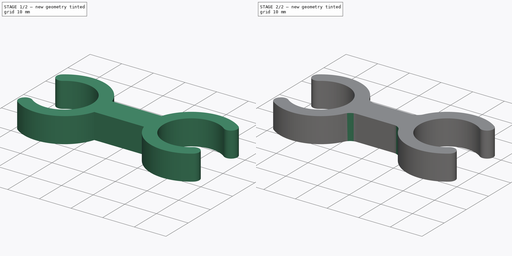
[diagram: build sequence overview — one tinted view per stage of 2, left to right]
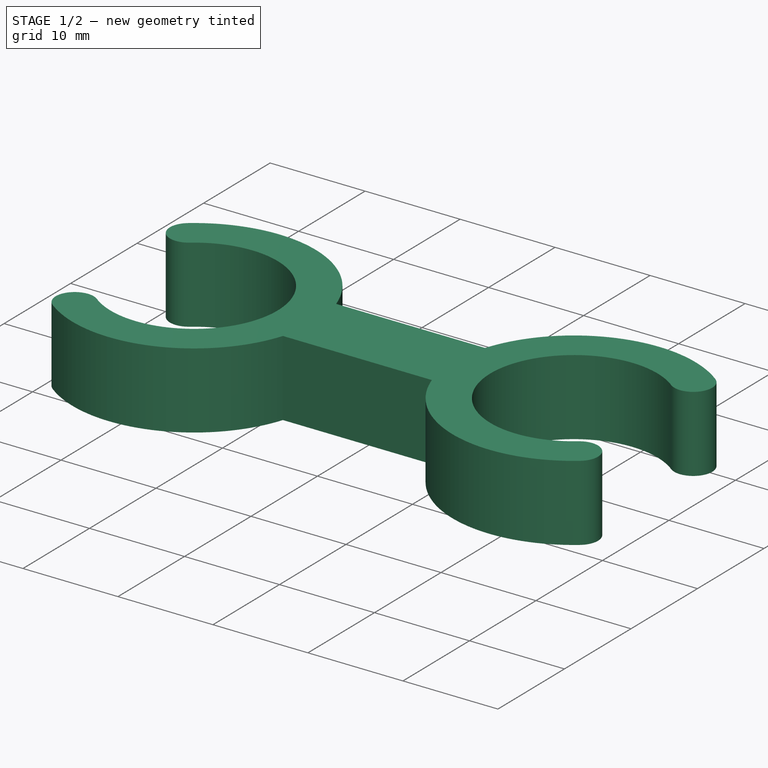
[diagram: stage 1 of 2 — iso view after this stage's code; geometry added in this stage tinted green]
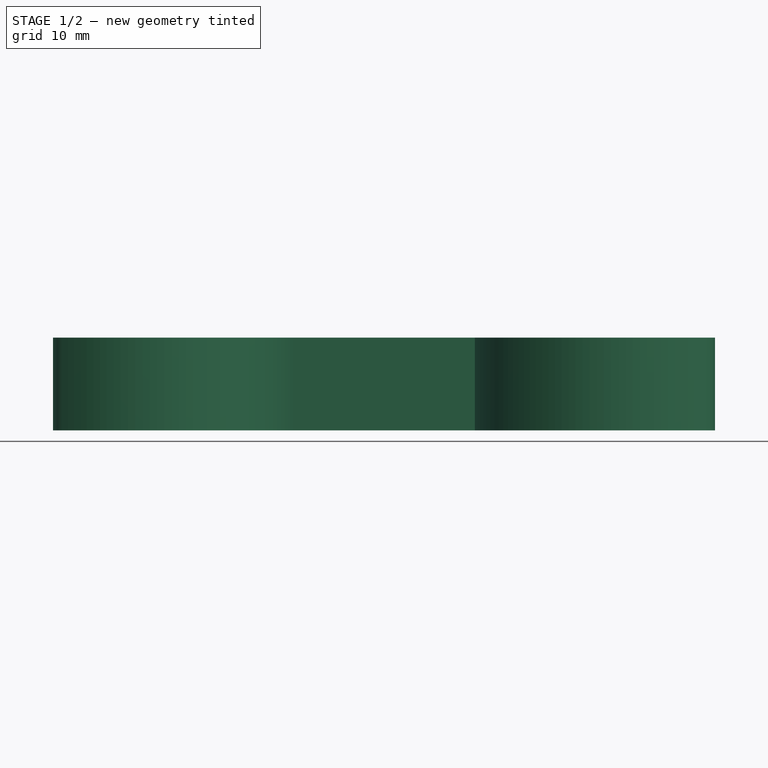
[diagram: stage 1 of 2 — front view after this stage's code; geometry added in this stage tinted green]
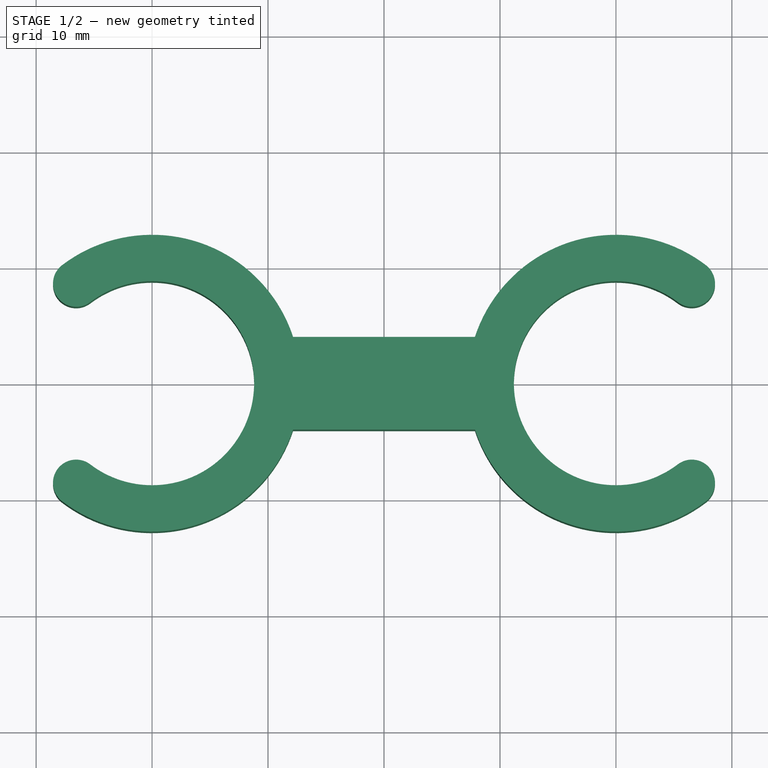
[diagram: stage 1 of 2 — top view after this stage's code; geometry added in this stage tinted green]
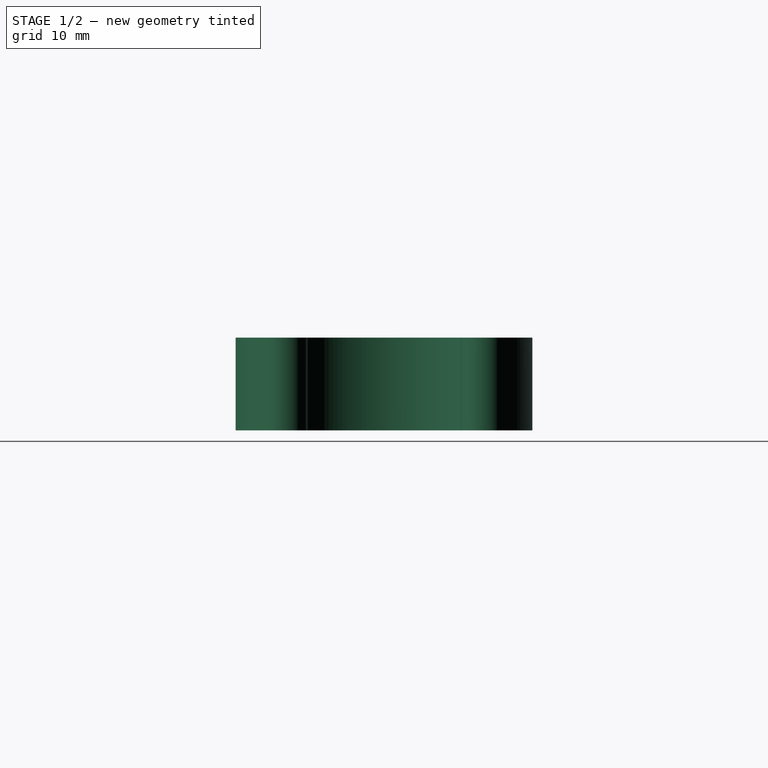
[diagram: stage 1 of 2 — right view after this stage's code; geometry added in this stage tinted green]
FCSTD DOCUMENT  (FreeCAD 0.18R16131 (Git))
Label: Connector
License: CreativeCommons Attribution-NonCommercial-NoDerivatives
LicenseURL: http://creativecommons.org/licenses/by-nc-nd/4.0/
objects: Sketcher::SketchObject×1, PartDesign::Pad×1, PartDesign::Fillet×1, PartDesign::Body×1
note: 5 computed .brp shape members not serialized (recipe doc carries the construction recipe); baked Part::Feature solids carry a one-line shape summary decoded from their .brp

FEATURE [Sketcher::SketchObject] Sketch
  MapMode = 5
  Support = -> [XY_Plane]
  sketch-geometry (15):
    g0: ArcOfCircle CenterX=-20 CenterY=0 CenterZ=0 NormalX=0 NormalY=0 NormalZ=1 AngleXU=0 Radius=8.8 StartAngle=4.06135 EndAngle=8.50502
    g1: LineSegment [constr] StartX=-25.3329 StartY=7 StartZ=0 EndX=-25.3329 EndY=-7 EndZ=0
    g2: LineSegment StartX=0 StartY=4 StartZ=0 EndX=-7.84105 EndY=4 EndZ=0
    g3: ArcOfCircle CenterX=-20 CenterY=0 CenterZ=0 NormalX=0 NormalY=0 NormalZ=1 AngleXU=0 Radius=12.8 StartAngle=0.317824 EndAngle=2.22184
    g4: ArcOfCircle CenterX=-26.5449 CenterY=8.59091 CenterZ=0 NormalX=0 NormalY=0 NormalZ=1 AngleXU=0 Radius=2 StartAngle=2.22184 EndAngle=5.36343
    g5: LineSegment StartX=0 StartY=-4 StartZ=0 EndX=-7.84105 EndY=-4 EndZ=0
    g6: ArcOfCircle CenterX=-20 CenterY=0 CenterZ=0 NormalX=0 NormalY=0 NormalZ=1 AngleXU=0 Radius=12.8 StartAngle=4.06135 EndAngle=5.96536
    g7: ArcOfCircle CenterX=-26.5449 CenterY=-8.59091 CenterZ=0 NormalX=0 NormalY=0 NormalZ=1 AngleXU=0 Radius=2 StartAngle=0.919757 EndAngle=4.06135
    g8: ArcOfCircle CenterX=26.5449 CenterY=8.59091 CenterZ=0 NormalX=0 NormalY=0 NormalZ=1 AngleXU=0 Radius=2 StartAngle=4.06135 EndAngle=7.20294
    g9: ArcOfCircle CenterX=20 CenterY=0 CenterZ=0 NormalX=0 NormalY=0 NormalZ=1 AngleXU=0 Radius=12.8 StartAngle=0.919757 EndAngle=2.82377
    g10: ArcOfCircle CenterX=20 CenterY=0 CenterZ=0 NormalX=0 NormalY=0 NormalZ=1 AngleXU=0 Radius=8.8 StartAngle=0.919757 EndAngle=5.36343
    g11: ArcOfCircle CenterX=26.5449 CenterY=-8.59091 CenterZ=0 NormalX=0 NormalY=0 NormalZ=1 AngleXU=0 Radius=2 StartAngle=5.36343 EndAngle=8.50502
    g12: ArcOfCircle CenterX=20 CenterY=0 CenterZ=0 NormalX=0 NormalY=0 NormalZ=1 AngleXU=0 Radius=12.8 StartAngle=3.45942 EndAngle=5.36343
    g13: LineSegment StartX=0 StartY=-4 StartZ=0 EndX=7.84105 EndY=-4 EndZ=0
    g14: LineSegment StartX=0 StartY=4 StartZ=0 EndX=7.84105 EndY=4 EndZ=0
  constraints (34):
    c: PointOnObject(g0,g-1)
    c: Radius(g0) = 8.8
    c: DistanceX(g0,g-1) = 20
    c: Coincident(g1,g0)
    c: Coincident(g1,g0)
    c: Vertical(g1)
    c: DistanceY(g1,g1) = 14
    c: PointOnObject(g2,g-2)
    c: Horizontal(g2)
    c: DistanceY(g-1,g2) = 4
    c: Coincident(g3,g0)
    c: Coincident(g3,g2)
    c: Radius(g3) = 12.8
    c: Coincident(g4,g3)
    c: Coincident(g4,g0)
    c: Radius(g4) = 2
    c: Horizontal(g5)
    c: Coincident(g6,g5)
    c: Radius(g6) = 12.8
    c: Coincident(g7,g6)
    c: Radius(g7) = 2
    c: Radius(g10) = 8.8
    c: Horizontal(g14)
    c: Coincident(g9,g10)
    c: Coincident(g9,g14)
    c: Radius(g9) = 12.8
    c: Coincident(g8,g9)
    c: Coincident(g8,g10)
    c: Radius(g8) = 2
    c: Horizontal(g13)
    c: Coincident(g12,g13)
    c: Radius(g12) = 12.8
    c: Coincident(g11,g12)
    c: Radius(g11) = 2
FEATURE [PartDesign::Pad] Pad
  Length = 8
  Length2 = 100
  Profile = -> Sketch
  Type = 0
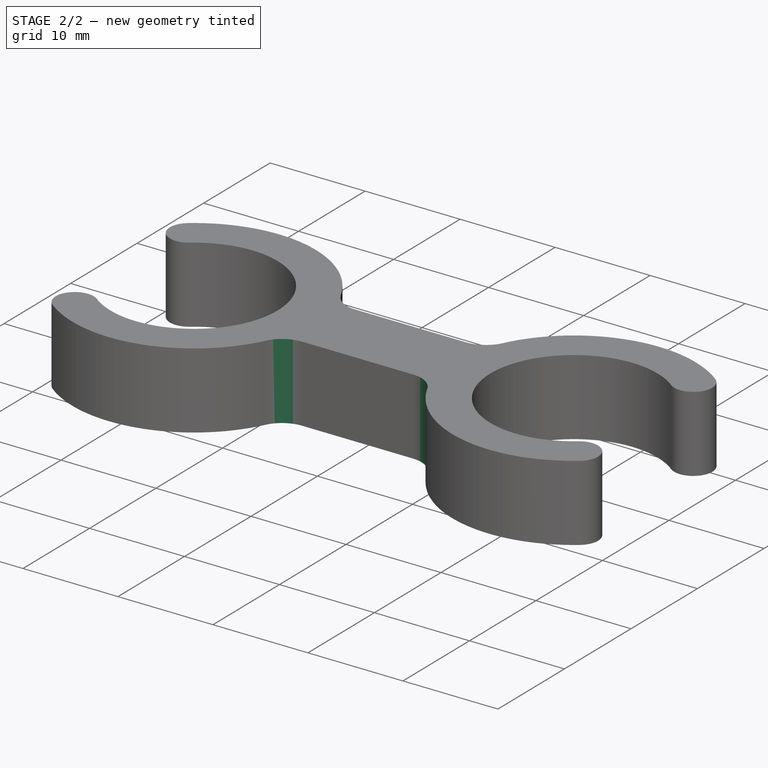
[diagram: stage 2 of 2 — iso view after this stage's code; geometry added in this stage tinted green]
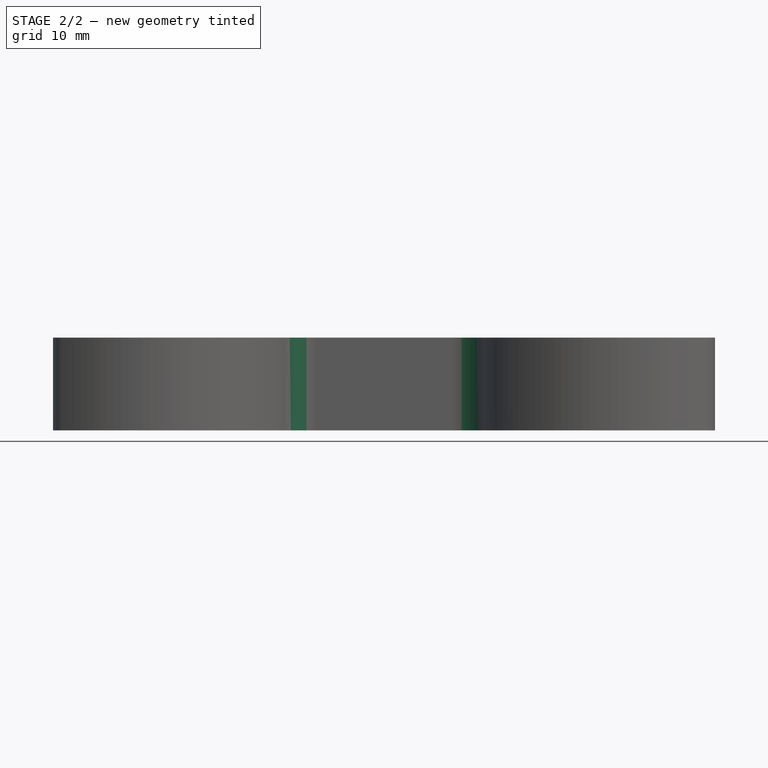
[diagram: stage 2 of 2 — front view after this stage's code; geometry added in this stage tinted green]
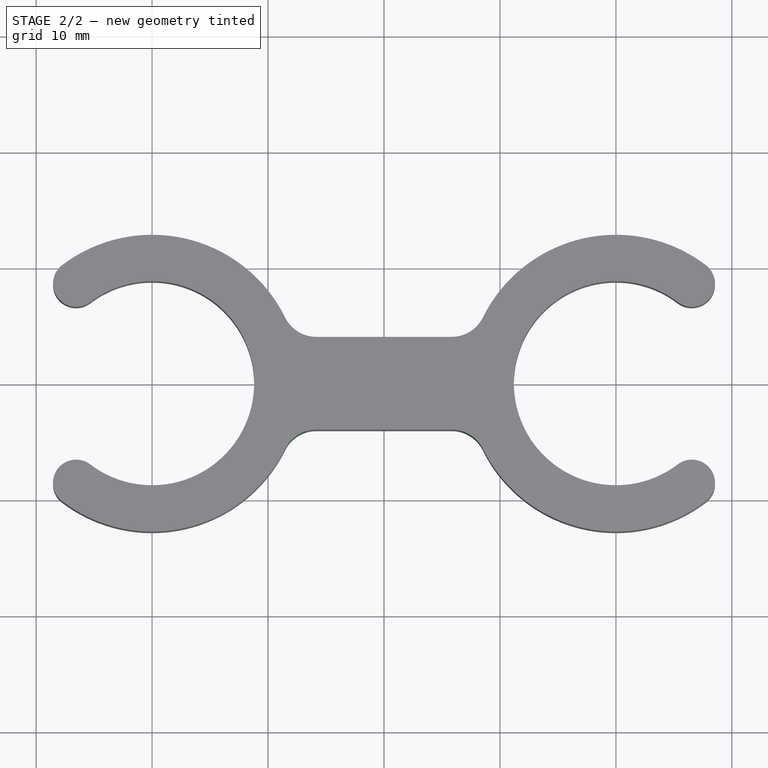
[diagram: stage 2 of 2 — top view after this stage's code; geometry added in this stage tinted green]
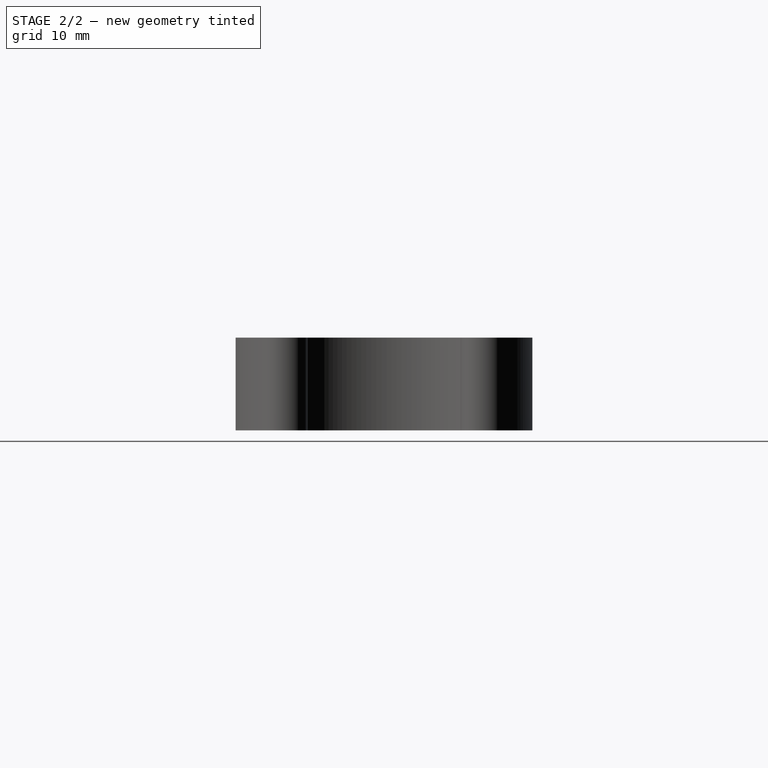
[diagram: stage 2 of 2 — right view after this stage's code; geometry added in this stage tinted green]
FEATURE [PartDesign::Fillet] Fillet
  Base = -> Pad [Edge35,Edge29,Edge8,Edge14]
  BaseFeature = -> Pad
  Radius = 3
FEATURE [PartDesign::Body] Body
  Group = -> [Sketch,Pad,Fillet]
  Origin = -> Origin
  Tip = -> Fillet
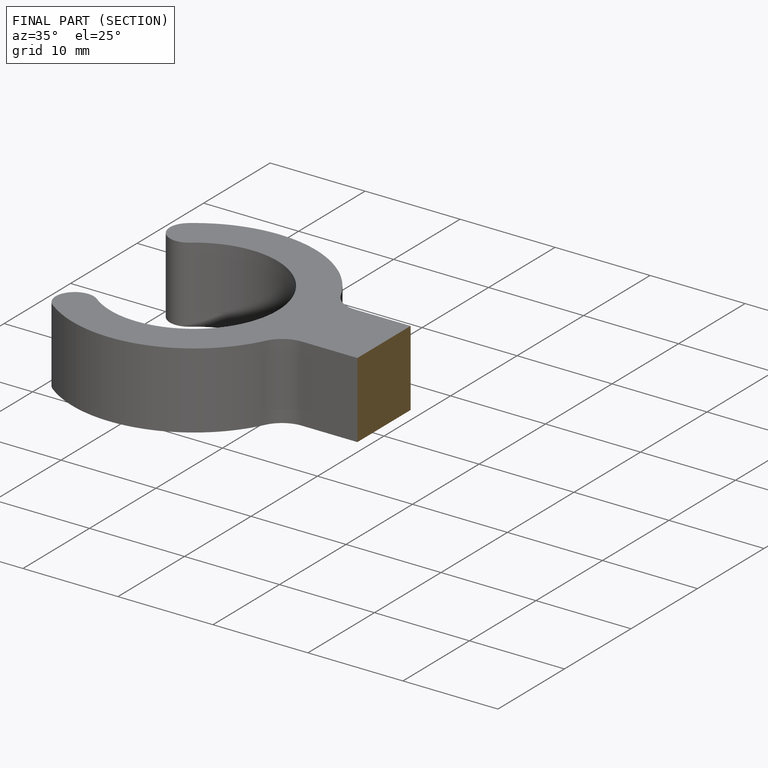
[diagram: finished part — half-section view (interior)]
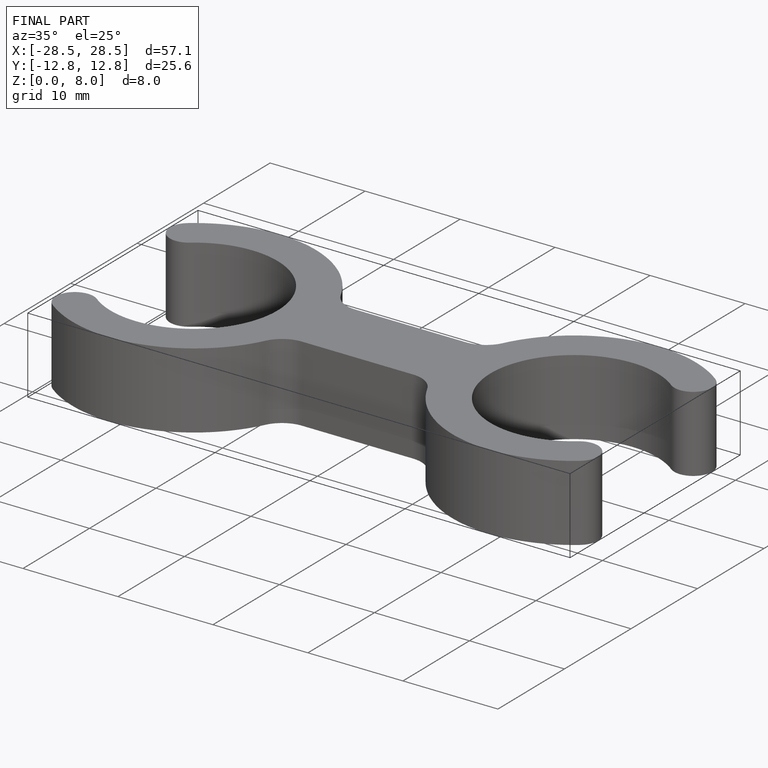
[diagram: finished part — iso view with bounding-box wireframe]
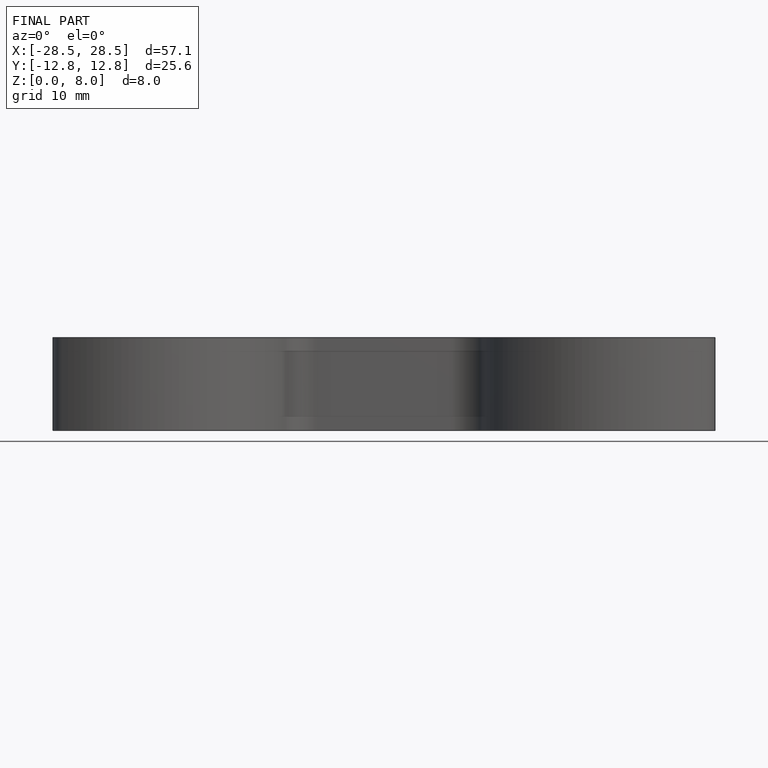
[diagram: finished part — front view with bounding-box wireframe]
